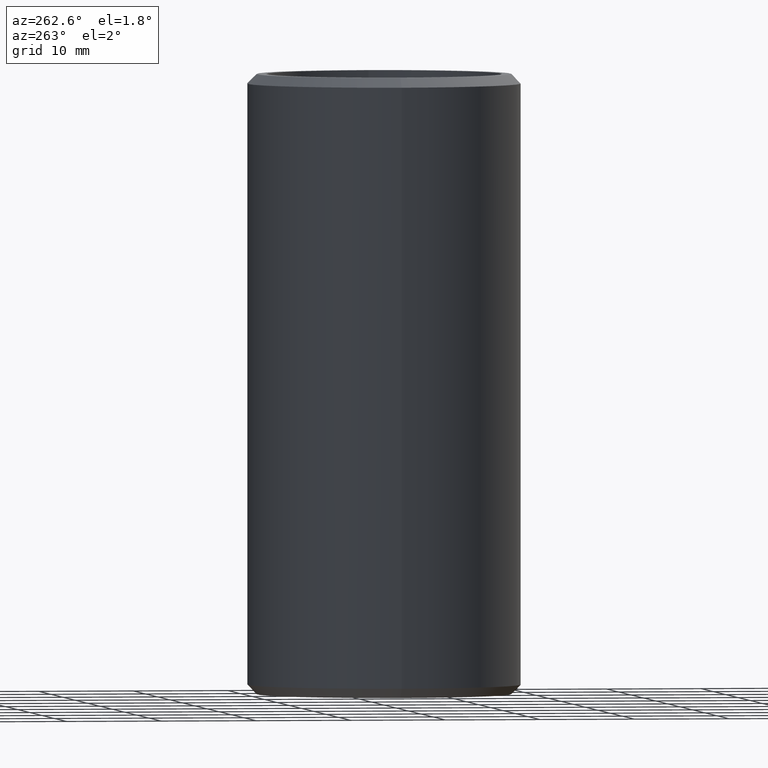
[diagram: clean part render]
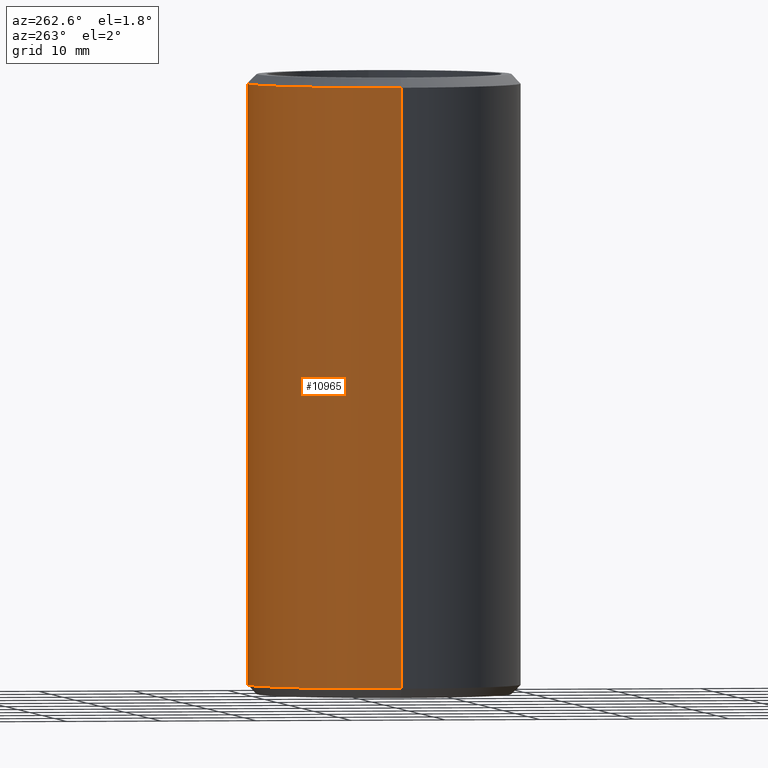
[diagram: same view with one face highlighted and labeled with its STEP entity id]
A machine part, auxiliary view. The second image highlights one B-rep face of the part: STEP entity #10965.
In plain terms, the highlighted cylindrical surface (partial cylindrical patch) has radius 14.35 mm, axis along (-0, -0, -1).
Its self-contained STEP definition (entity closure, byte-faithful):
#224 = CARTESIAN_POINT ( 'NONE',  ( 14.35000000000000300, 1.757368156776452400E-015, 32.50000000000000000 ) ) ;
#430 = VECTOR ( 'NONE', #2678, 1000.000000000000000 ) ;
#850 = DIRECTION ( 'NONE',  ( -0.0000000000000000000, -0.0000000000000000000, 1.000000000000000000 ) ) ;
#1008 = CARTESIAN_POINT ( 'NONE',  ( 0.0000000000000000000, 0.0000000000000000000, 32.50000000000000000 ) ) ;
#1308 = EDGE_CURVE ( 'NONE', #10517, #9658, #5701, .T. ) ;
#1681 = AXIS2_PLACEMENT_3D ( 'NONE', #14139, #9708, #13072 ) ;
#1872 = CARTESIAN_POINT ( 'NONE',  ( -14.35000000000000300, 0.0000000000000000000, -31.50000000000000000 ) ) ;
#1891 = CIRCLE ( 'NONE', #1681, 14.35000000000000300 ) ;
#2678 = DIRECTION ( 'NONE',  ( -0.0000000000000000000, -0.0000000000000000000, -1.000000000000000000 ) ) ;
#2942 = LINE ( 'NONE', #224, #6697 ) ;
#3444 = VERTEX_POINT ( 'NONE', #11684 ) ;
#3749 = VERTEX_POINT ( 'NONE', #12428 ) ;
#4172 = EDGE_CURVE ( 'NONE', #3749, #3444, #2942, .T. ) ;
#4416 = DIRECTION ( 'NONE',  ( -1.000000000000000000, 0.0000000000000000000, 0.0000000000000000000 ) ) ;
#4523 = DIRECTION ( 'NONE',  ( -0.0000000000000000000, -0.0000000000000000000, -1.000000000000000000 ) ) ;
#4969 = CIRCLE ( 'NONE', #6432, 14.35000000000000300 ) ;
#5701 = LINE ( 'NONE', #12204, #430 ) ;
#5749 = ORIENTED_EDGE ( 'NONE', *, *, #1308, .F. ) ;
#5954 = CARTESIAN_POINT ( 'NONE',  ( -14.35000000000000300, 0.0000000000000000000, 31.50000000000000700 ) ) ;
#6084 = ORIENTED_EDGE ( 'NONE', *, *, #7005, .T. ) ;
#6392 = DIRECTION ( 'NONE',  ( 1.000000000000000000, 0.0000000000000000000, 0.0000000000000000000 ) ) ;
#6432 = AXIS2_PLACEMENT_3D ( 'NONE', #11717, #850, #6392 ) ;
#6697 = VECTOR ( 'NONE', #4523, 1000.000000000000000 ) ;
#7005 = EDGE_CURVE ( 'NONE', #3444, #9658, #4969, .T. ) ;
#8583 = CYLINDRICAL_SURFACE ( 'NONE', #12826, 14.35000000000000300 ) ;
#9374 = ORIENTED_EDGE ( 'NONE', *, *, #4172, .T. ) ;
#9658 = VERTEX_POINT ( 'NONE', #1872 ) ;
#9708 = DIRECTION ( 'NONE',  ( 0.0000000000000000000, 0.0000000000000000000, -1.000000000000000000 ) ) ;
#10401 = ORIENTED_EDGE ( 'NONE', *, *, #10952, .T. ) ;
#10517 = VERTEX_POINT ( 'NONE', #5954 ) ;
#10945 = FACE_OUTER_BOUND ( 'NONE', #11681, .T. ) ;
#10952 = EDGE_CURVE ( 'NONE', #10517, #3749, #1891, .T. ) ;
#10965 = ADVANCED_FACE ( 'NONE', ( #10945 ), #8583, .T. ) ;
#11681 = EDGE_LOOP ( 'NONE', ( #10401, #9374, #6084, #5749 ) ) ;
#11684 = CARTESIAN_POINT ( 'NONE',  ( 14.35000000000000300, 1.757368156776452400E-015, -31.50000000000000000 ) ) ;
#11717 = CARTESIAN_POINT ( 'NONE',  ( 0.0000000000000000000, 0.0000000000000000000, -31.50000000000000000 ) ) ;
#12204 = CARTESIAN_POINT ( 'NONE',  ( -14.35000000000000300, 0.0000000000000000000, 32.50000000000000000 ) ) ;
#12428 = CARTESIAN_POINT ( 'NONE',  ( 14.35000000000000300, 1.757368156776452400E-015, 31.50000000000000700 ) ) ;
#12826 = AXIS2_PLACEMENT_3D ( 'NONE', #1008, #13118, #4416 ) ;
#13072 = DIRECTION ( 'NONE',  ( 1.000000000000000000, 0.0000000000000000000, 0.0000000000000000000 ) ) ;
#13118 = DIRECTION ( 'NONE',  ( -0.0000000000000000000, -0.0000000000000000000, -1.000000000000000000 ) ) ;
#14139 = CARTESIAN_POINT ( 'NONE',  ( 0.0000000000000000000, 0.0000000000000000000, 31.50000000000000700 ) ) ;